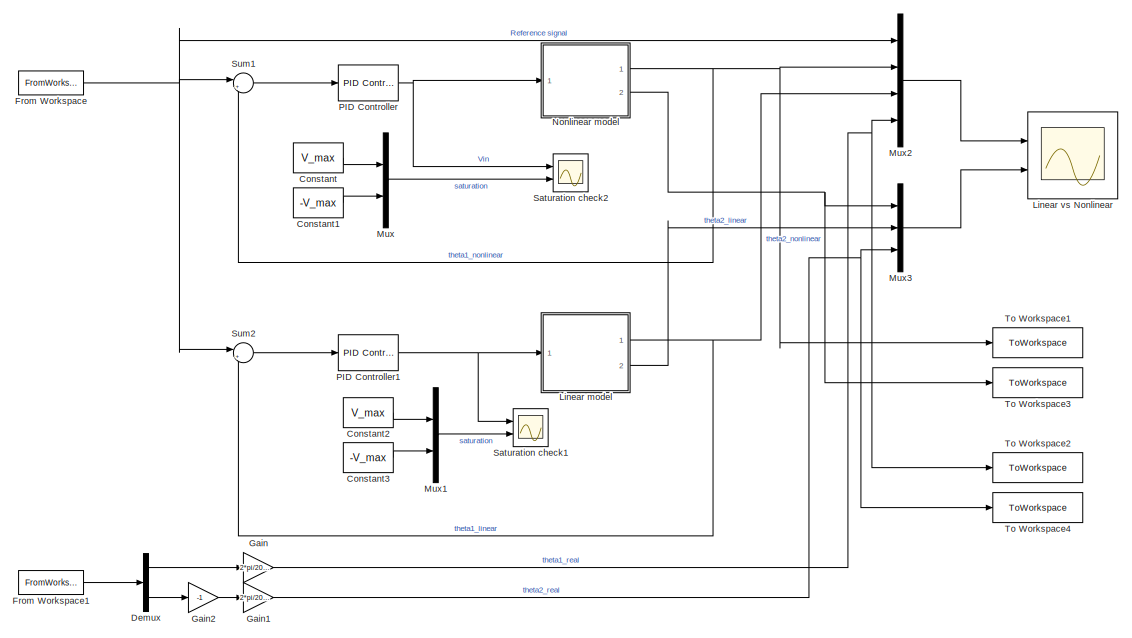
[diagram: root canvas - part 1/3, top left region]
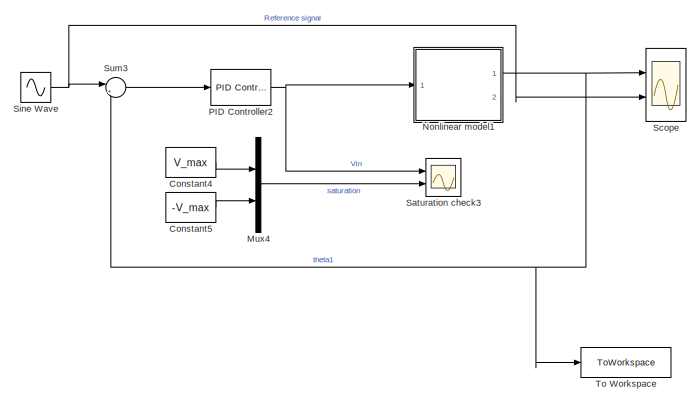
[diagram: root canvas - part 2/3, middle right region]
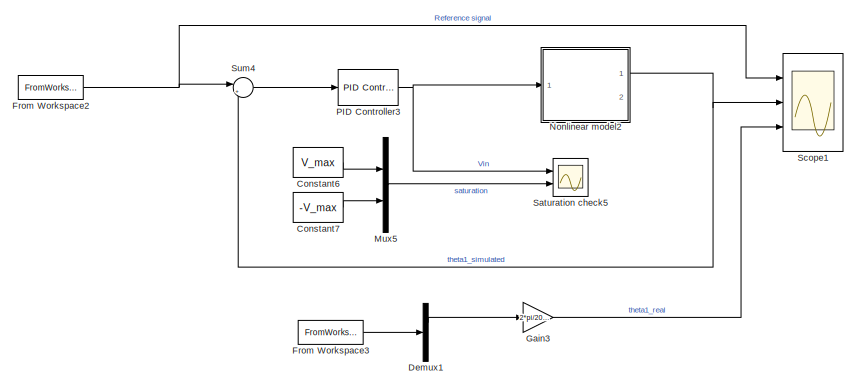
[diagram: root canvas - part 3/3, bottom center region]
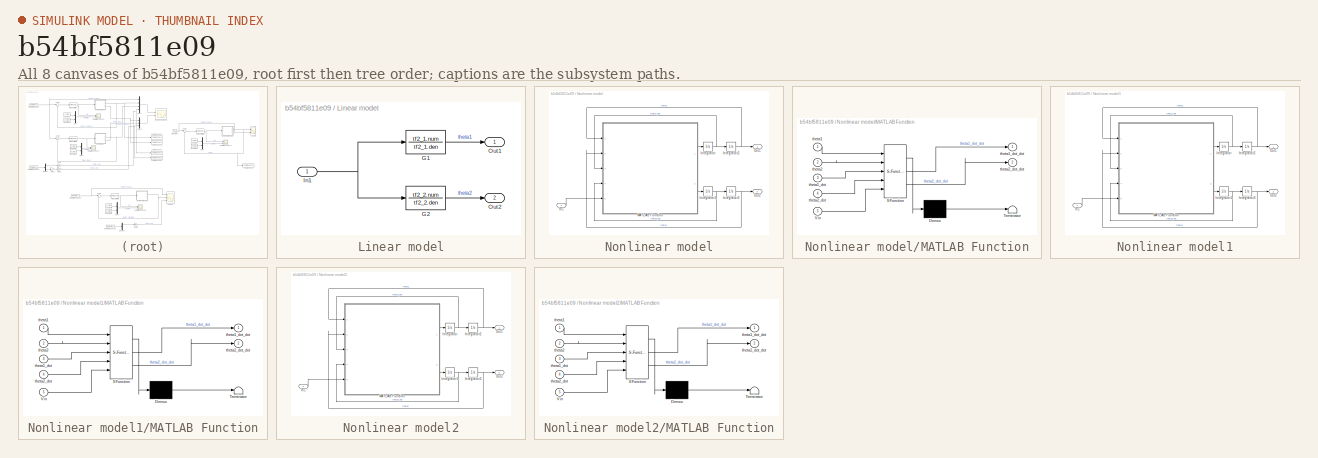
[diagram: thumbnail index - all 8 canvases of the model, root first then tree order]
MODEL slx_b54bf5811e09
KIND model
CONFIG AbsTol = auto
CONFIG EnableMultiTasking = off
CONFIG FixedStep = 1e-3
CONFIG MaxStep = auto
CONFIG MinStep = auto
CONFIG RelTol = 1e-3
CONFIG SampleTimeConstraint = Unconstrained
CONFIG Solver = FixedStepAuto
CONFIG SolverName = FixedStepAuto
CONFIG StartTime = 0.0
CONFIG StopTime = 10
BLOCK [Constant] Constant
  Value = V_max
BLOCK [Constant] Constant1
  Value = -V_max
BLOCK [Constant] Constant2
  Commented = on
  Value = V_max
BLOCK [Constant] Constant3
  Commented = on
  Value = -V_max
BLOCK [Constant] Constant4
  Value = V_max
BLOCK [Constant] Constant5
  Value = -V_max
BLOCK [Constant] Constant6
  Value = V_max
BLOCK [Constant] Constant7
  Value = -V_max
BLOCK [Demux] Demux
  DisplayOption = bar
  Outputs = 2
  Ports = [1, 2]
BLOCK [Demux] Demux1
  DisplayOption = bar
  Outputs = 2
  Ports = [1, 2]
BLOCK [FromWorkspace] From Workspace
  SampleTime = 0
  VariableName = inputTS
  ZeroCross = on
BLOCK [FromWorkspace] From Workspace1
  SampleTime = 0
  VariableName = outputTS
  ZeroCross = on
BLOCK [FromWorkspace] From Workspace2
  SampleTime = 0
  VariableName = inputTS
  ZeroCross = on
BLOCK [FromWorkspace] From Workspace3
  SampleTime = 0
  VariableName = outputTS
  ZeroCross = on
BLOCK [Gain] Gain
  Gain = 2*pi/2048
  OutDataTypeStr = Inherit: Inherit via internal rule
  ParamDataTypeStr = Inherit: Inherit via internal rule
  SaturateOnIntegerOverflow = off
BLOCK [Gain] Gain1
  Gain = 2*pi/2048
  OutDataTypeStr = Inherit: Inherit via internal rule
  ParamDataTypeStr = Inherit: Inherit via internal rule
  SaturateOnIntegerOverflow = off
BLOCK [Gain] Gain2
  Gain = -1
  OutDataTypeStr = Inherit: Inherit via internal rule
  ParamDataTypeStr = Inherit: Inherit via internal rule
  SaturateOnIntegerOverflow = off
BLOCK [Gain] Gain3
  Gain = 2*pi/2048
  OutDataTypeStr = Inherit: Inherit via internal rule
  ParamDataTypeStr = Inherit: Inherit via internal rule
  SaturateOnIntegerOverflow = off
BLOCK [SubSystem] Linear model
  Commented = on
  Ports = [1, 2]
  RequestExecContextInheritance = off
BLOCK [TransferFcn] Linear model/G1
  Denominator = tf2_1.den
  Numerator = tf2_1.num
BLOCK [TransferFcn] Linear model/G2
  Denominator = tf2_2.den
  Numerator = tf2_2.num
BLOCK [Inport] Linear model/In1
  IconDisplay = Port number
BLOCK [Outport] Linear model/Out1
  IconDisplay = Port number
BLOCK [Outport] Linear model/Out2
  IconDisplay = Port number
  Port = 2
BLOCK [Scope] Linear vs Nonlinear
  Floating = off
  NumInputPorts = 2
  Ports = [2]
  ScopeSpecificationString = Simulink.scopes.TimeScopeBlockCfg('CurrentConfiguration', extmgr.ConfigurationSet(extmgr.Configuration('Core','General UI',true),extmgr.Configuration('Core','Source UI',true),extmgr.Configuration('Sources','WiredSimulink',true,'DataLoggingVariableName','ScopeData1'),extmgr.Configuration('Visuals','Time Domain',true,'SerializedDisplays',{struct('MinYLimReal','-1.38999','MaxYLimReal','1.39013','YLab...<+2727ch>
BLOCK [Mux] Mux
  DisplayOption = bar
  Inputs = 2
  Ports = [2, 1]
BLOCK [Mux] Mux1
  Commented = on
  DisplayOption = bar
  Inputs = 2
  Ports = [2, 1]
BLOCK [Mux] Mux2
  DisplayOption = bar
  Ports = [4, 1]
BLOCK [Mux] Mux3
  DisplayOption = bar
  Inputs = 3
  Ports = [3, 1]
BLOCK [Mux] Mux4
  DisplayOption = bar
  Inputs = 2
  Ports = [2, 1]
BLOCK [Mux] Mux5
  DisplayOption = bar
  Inputs = 2
  Ports = [2, 1]
BLOCK [SubSystem] Nonlinear model
  Ports = [1, 2]
  RequestExecContextInheritance = off
BLOCK [Inport] Nonlinear model/In1
  IconDisplay = Port number
BLOCK [Integrator] Nonlinear model/Integrator
  Ports = [1, 1]
BLOCK [Integrator] Nonlinear model/Integrator1
  Ports = [1, 1]
BLOCK [Integrator] Nonlinear model/Integrator2
  Ports = [1, 1]
BLOCK [Integrator] Nonlinear model/Integrator3
  Ports = [1, 1]
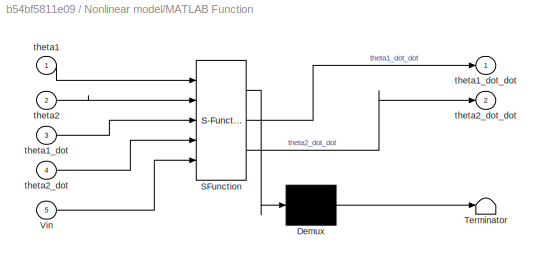
BLOCK [SubSystem] Nonlinear model/MATLAB Function
  ErrorFcn = Stateflow.Translate.translate
  PermitHierarchicalResolution = ExplicitOnly
  Ports = [5, 2]
  RequestExecContextInheritance = off
  SFBlockType = MATLAB Function
  TreatAsAtomicUnit = on
BLOCK [Demux] Nonlinear model/MATLAB Function/ Demux 
  DisplayOption = bar
  Outputs = 1
  Ports = [1, 1]
BLOCK [S-Function] Nonlinear model/MATLAB Function/ SFunction 
  EnableBusSupport = on
  FunctionName = sf_sfun
  Parameters = Pars
  PortCounts = [5 3]
  Ports = [5, 3]
  SFcnIsStateOwnerBlock = off
  SFunctionDeploymentMode = off
  Tag = Stateflow S-Function 2
BLOCK [Terminator] Nonlinear model/MATLAB Function/ Terminator 
BLOCK [Inport] Nonlinear model/MATLAB Function/Vin
  IconDisplay = Port number
  Port = 5
BLOCK [Inport] Nonlinear model/MATLAB Function/theta1
  IconDisplay = Port number
BLOCK [Inport] Nonlinear model/MATLAB Function/theta1_dot
  IconDisplay = Port number
  Port = 3
BLOCK [Outport] Nonlinear model/MATLAB Function/theta1_dot_dot
  IconDisplay = Port number
BLOCK [Inport] Nonlinear model/MATLAB Function/theta2
  IconDisplay = Port number
  Port = 2
BLOCK [Inport] Nonlinear model/MATLAB Function/theta2_dot
  IconDisplay = Port number
  Port = 4
BLOCK [Outport] Nonlinear model/MATLAB Function/theta2_dot_dot
  IconDisplay = Port number
  Port = 2
BLOCK [Outport] Nonlinear model/Out1
  IconDisplay = Port number
BLOCK [Outport] Nonlinear model/Out2
  IconDisplay = Port number
  Port = 2
BLOCK [SubSystem] Nonlinear model1
  Ports = [1, 2]
  RequestExecContextInheritance = off
BLOCK [Inport] Nonlinear model1/In1
  IconDisplay = Port number
BLOCK [Integrator] Nonlinear model1/Integrator
  Ports = [1, 1]
BLOCK [Integrator] Nonlinear model1/Integrator1
  Ports = [1, 1]
BLOCK [Integrator] Nonlinear model1/Integrator2
  Ports = [1, 1]
BLOCK [Integrator] Nonlinear model1/Integrator3
  Ports = [1, 1]
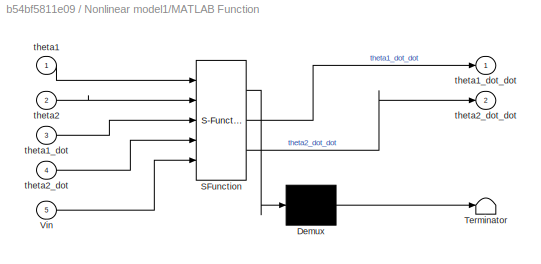
BLOCK [SubSystem] Nonlinear model1/MATLAB Function
  ErrorFcn = Stateflow.Translate.translate
  PermitHierarchicalResolution = ExplicitOnly
  Ports = [5, 2]
  RequestExecContextInheritance = off
  SFBlockType = MATLAB Function
  TreatAsAtomicUnit = on
BLOCK [Demux] Nonlinear model1/MATLAB Function/ Demux 
  DisplayOption = bar
  Outputs = 1
  Ports = [1, 1]
BLOCK [S-Function] Nonlinear model1/MATLAB Function/ SFunction 
  EnableBusSupport = on
  FunctionName = sf_sfun
  Parameters = Pars
  PortCounts = [5 3]
  Ports = [5, 3]
  SFcnIsStateOwnerBlock = off
  SFunctionDeploymentMode = off
  Tag = Stateflow S-Function 1
BLOCK [Terminator] Nonlinear model1/MATLAB Function/ Terminator 
BLOCK [Inport] Nonlinear model1/MATLAB Function/Vin
  IconDisplay = Port number
  Port = 5
BLOCK [Inport] Nonlinear model1/MATLAB Function/theta1
  IconDisplay = Port number
BLOCK [Inport] Nonlinear model1/MATLAB Function/theta1_dot
  IconDisplay = Port number
  Port = 3
BLOCK [Outport] Nonlinear model1/MATLAB Function/theta1_dot_dot
  IconDisplay = Port number
BLOCK [Inport] Nonlinear model1/MATLAB Function/theta2
  IconDisplay = Port number
  Port = 2
BLOCK [Inport] Nonlinear model1/MATLAB Function/theta2_dot
  IconDisplay = Port number
  Port = 4
BLOCK [Outport] Nonlinear model1/MATLAB Function/theta2_dot_dot
  IconDisplay = Port number
  Port = 2
BLOCK [Outport] Nonlinear model1/Out1
  IconDisplay = Port number
BLOCK [Outport] Nonlinear model1/Out2
  IconDisplay = Port number
  Port = 2
BLOCK [SubSystem] Nonlinear model2
  Ports = [1, 2]
  RequestExecContextInheritance = off
BLOCK [Inport] Nonlinear model2/In1
  IconDisplay = Port number
BLOCK [Integrator] Nonlinear model2/Integrator
  Ports = [1, 1]
BLOCK [Integrator] Nonlinear model2/Integrator1
  Ports = [1, 1]
BLOCK [Integrator] Nonlinear model2/Integrator2
  Ports = [1, 1]
BLOCK [Integrator] Nonlinear model2/Integrator3
  Ports = [1, 1]
BLOCK [SubSystem] Nonlinear model2/MATLAB Function
  ErrorFcn = Stateflow.Translate.translate
  PermitHierarchicalResolution = ExplicitOnly
  Ports = [5, 2]
  RequestExecContextInheritance = off
  SFBlockType = MATLAB Function
  TreatAsAtomicUnit = on
BLOCK [Demux] Nonlinear model2/MATLAB Function/ Demux 
  DisplayOption = bar
  Outputs = 1
  Ports = [1, 1]
BLOCK [S-Function] Nonlinear model2/MATLAB Function/ SFunction 
  EnableBusSupport = on
  FunctionName = sf_sfun
  Parameters = Pars
  PortCounts = [5 3]
  Ports = [5, 3]
  SFcnIsStateOwnerBlock = off
  SFunctionDeploymentMode = off
  Tag = Stateflow S-Function 3
BLOCK [Terminator] Nonlinear model2/MATLAB Function/ Terminator 
BLOCK [Inport] Nonlinear model2/MATLAB Function/Vin
  IconDisplay = Port number
  Port = 5
BLOCK [Inport] Nonlinear model2/MATLAB Function/theta1
  IconDisplay = Port number
BLOCK [Inport] Nonlinear model2/MATLAB Function/theta1_dot
  IconDisplay = Port number
  Port = 3
BLOCK [Outport] Nonlinear model2/MATLAB Function/theta1_dot_dot
  IconDisplay = Port number
BLOCK [Inport] Nonlinear model2/MATLAB Function/theta2
  IconDisplay = Port number
  Port = 2
BLOCK [Inport] Nonlinear model2/MATLAB Function/theta2_dot
  IconDisplay = Port number
  Port = 4
BLOCK [Outport] Nonlinear model2/MATLAB Function/theta2_dot_dot
  IconDisplay = Port number
  Port = 2
BLOCK [Outport] Nonlinear model2/Out1
  IconDisplay = Port number
BLOCK [Outport] Nonlinear model2/Out2
  IconDisplay = Port number
  Port = 2
BLOCK [Reference] PID Controller  REF=simulink/Continuous/PID Controller
  Ports = [1, 1]
  SourceBlock = simulink/Continuous/PID Controller
  SourceProductBaseCode = SL
  SourceProductName = Simulink
  SourceType = PID 1dof
BLOCK [Reference] PID Controller1  REF=simulink/Continuous/PID Controller
  Commented = on
  Ports = [1, 1]
  SourceBlock = simulink/Continuous/PID Controller
  SourceProductBaseCode = SL
  SourceProductName = Simulink
  SourceType = PID 1dof
BLOCK [Reference] PID Controller2  REF=simulink/Continuous/PID Controller
  Ports = [1, 1]
  SourceBlock = simulink/Continuous/PID Controller
  SourceProductBaseCode = SL
  SourceProductName = Simulink
  SourceType = PID 1dof
BLOCK [Reference] PID Controller3  REF=simulink/Continuous/PID Controller
  Ports = [1, 1]
  SourceBlock = simulink/Continuous/PID Controller
  SourceProductBaseCode = SL
  SourceProductName = Simulink
  SourceType = PID 1dof
BLOCK [Scope] Saturation check1
  Commented = on
  Floating = off
  NumInputPorts = 2
  Ports = [2]
  ScopeSpecificationString = Simulink.scopes.TimeScopeBlockCfg('CurrentConfiguration', extmgr.ConfigurationSet(extmgr.Configuration('Core','General UI',true),extmgr.Configuration('Core','Source UI',true),extmgr.Configuration('Sources','WiredSimulink',true),extmgr.Configuration('Visuals','Time Domain',true,'SerializedDisplays',{struct('MinYLimReal','-12.5','MaxYLimReal','12.5','YLabelReal','','MinYLimMag','0.00000','MaxYLimMag...<+1553ch>
BLOCK [Scope] Saturation check2
  Floating = off
  NumInputPorts = 2
  Ports = [2]
  ScopeSpecificationString = Simulink.scopes.TimeScopeBlockCfg('CurrentConfiguration', extmgr.ConfigurationSet(extmgr.Configuration('Core','General UI',true),extmgr.Configuration('Core','Source UI',true),extmgr.Configuration('Sources','WiredSimulink',true,'DataLoggingVariableName','ScopeData2'),extmgr.Configuration('Visuals','Time Domain',true,'SerializedDisplays',{struct('MinYLimReal','-12.5','MaxYLimReal','12.5','YLabelReal...<+1552ch>
BLOCK [Scope] Saturation check3
  Floating = off
  NumInputPorts = 2
  Ports = [2]
  ScopeSpecificationString = Simulink.scopes.TimeScopeBlockCfg('CurrentConfiguration', extmgr.ConfigurationSet(extmgr.Configuration('Core','General UI',true),extmgr.Configuration('Core','Source UI',true),extmgr.Configuration('Sources','WiredSimulink',true,'DataLoggingVariableName','ScopeData1'),extmgr.Configuration('Visuals','Time Domain',true,'SerializedDisplays',{struct('MinYLimReal','-12.5','MaxYLimReal','12.5','YLabelReal...<+1592ch>
BLOCK [Scope] Saturation check5
  Floating = off
  NumInputPorts = 2
  Ports = [2]
  ScopeSpecificationString = Simulink.scopes.TimeScopeBlockCfg('CurrentConfiguration', extmgr.ConfigurationSet(extmgr.Configuration('Core','General UI',true),extmgr.Configuration('Core','Source UI',true),extmgr.Configuration('Sources','WiredSimulink',true,'DataLoggingVariableName','ScopeData3'),extmgr.Configuration('Visuals','Time Domain',true,'SerializedDisplays',{struct('MinYLimReal','-12.5','MaxYLimReal','12.5','YLabelReal...<+1592ch>
BLOCK [Scope] Scope
  Floating = off
  NumInputPorts = 2
  Ports = [2]
  ScopeSpecificationString = Simulink.scopes.TimeScopeBlockCfg('CurrentConfiguration', extmgr.ConfigurationSet(extmgr.Configuration('Core','General UI',true),extmgr.Configuration('Core','Source UI',true),extmgr.Configuration('Sources','WiredSimulink',true,'DataLoggingVariableName','ScopeData2'),extmgr.Configuration('Visuals','Time Domain',true,'SerializedDisplays',{struct('MinYLimReal','-1.25','MaxYLimReal','1.25','YLabelReal...<+1439ch>
BLOCK [Scope] Scope1
  Floating = off
  NumInputPorts = 3
  Ports = [3]
  ScopeSpecificationString = Simulink.scopes.TimeScopeBlockCfg('CurrentConfiguration', extmgr.ConfigurationSet(extmgr.Configuration('Core','General UI',true,'FigureColor',[1 1 1]),extmgr.Configuration('Core','Source UI',true),extmgr.Configuration('Sources','WiredSimulink',true,'DataLoggingVariableName','ScopeData2'),extmgr.Configuration('Visuals','Time Domain',true,'SerializedDisplays',{struct('MinYLimReal','-0.10637','MaxYLi...<+1969ch>
BLOCK [Sin] Sine Wave
  Frequency = 4
  Ports = [0, 1]
  SampleTime = 0
BLOCK [Sum] Sum1
  IconShape = round
  InputSameDT = off
  Inputs = |+-
  OutDataTypeStr = Inherit: Inherit via internal rule
  Ports = [2, 1]
  SaturateOnIntegerOverflow = off
BLOCK [Sum] Sum2
  Commented = on
  IconShape = round
  InputSameDT = off
  Inputs = |+-
  OutDataTypeStr = Inherit: Inherit via internal rule
  Ports = [2, 1]
  SaturateOnIntegerOverflow = off
BLOCK [Sum] Sum3
  IconShape = round
  InputSameDT = off
  Inputs = |+-
  OutDataTypeStr = Inherit: Inherit via internal rule
  Ports = [2, 1]
  SaturateOnIntegerOverflow = off
BLOCK [Sum] Sum4
  IconShape = round
  InputSameDT = off
  Inputs = |+-
  OutDataTypeStr = Inherit: Inherit via internal rule
  Ports = [2, 1]
  SaturateOnIntegerOverflow = off
BLOCK [ToWorkspace] To Workspace
  FixptAsFi = on
  MaxDataPoints = inf
  Ports = [1]
  SampleTime = 0.02
  Save2DSignal = 2-D array (concatenate along first dimension)
  VariableName = output
BLOCK [ToWorkspace] To Workspace1
  FixptAsFi = on
  MaxDataPoints = inf
  Ports = [1]
  SampleTime = -1
  Save2DSignal = 2-D array (concatenate along first dimension)
  VariableName = sim1
BLOCK [ToWorkspace] To Workspace2
  FixptAsFi = on
  MaxDataPoints = inf
  Ports = [1]
  SampleTime = -1
  Save2DSignal = 2-D array (concatenate along first dimension)
  VariableName = real1
BLOCK [ToWorkspace] To Workspace3
  FixptAsFi = on
  MaxDataPoints = inf
  Ports = [1]
  SampleTime = -1
  Save2DSignal = 2-D array (concatenate along first dimension)
  VariableName = sim2
BLOCK [ToWorkspace] To Workspace4
  FixptAsFi = on
  MaxDataPoints = inf
  Ports = [1]
  SampleTime = -1
  Save2DSignal = 2-D array (concatenate along first dimension)
  VariableName = real2
LINE Constant1:1 -> Mux:2
LINE Constant2:1 -> Mux1:1
LINE Constant3:1 -> Mux1:2
LINE Constant4:1 -> Mux4:1
LINE Constant5:1 -> Mux4:2
LINE Constant6:1 -> Mux5:1
LINE Constant7:1 -> Mux5:2
LINE Constant:1 -> Mux:1
LINE Demux1:1 -> Gain3:1
LINE Demux:1 -> Gain:1
LINE Demux:2 -> Gain2:1
LINE From Workspace1:1 -> Demux:1
NET From Workspace2:1 -> Scope1:1, Sum4:1
LINE From Workspace3:1 -> Demux1:1
NET From Workspace:1 -> Mux2:1, Sum1:1, Sum2:1
NET Gain1:1 -> Mux3:3, To Workspace4:1
LINE Gain2:1 -> Gain1:1
LINE Gain3:1 -> Scope1:3
NET Gain:1 -> Mux2:4, To Workspace2:1
LINE Linear model/G1:1 -> Linear model/Out1:1
LINE Linear model/G2:1 -> Linear model/Out2:1
NET Linear model/In1:1 -> Linear model/G1:1, Linear model/G2:1
NET Linear model:1 -> Mux2:3, Sum2:2
LINE Linear model:2 -> Mux3:2
LINE Mux1:1 -> Saturation check1:2
LINE Mux2:1 -> Linear vs Nonlinear:1
LINE Mux3:1 -> Linear vs Nonlinear:2
LINE Mux4:1 -> Saturation check3:2
LINE Mux5:1 -> Saturation check5:2
LINE Mux:1 -> Saturation check2:2
LINE Nonlinear model/In1:1 -> Nonlinear model/MATLAB Function:5
NET Nonlinear model/Integrator1:1 -> Nonlinear model/Integrator3:1, Nonlinear model/MATLAB Function:4
NET Nonlinear model/Integrator2:1 -> Nonlinear model/MATLAB Function:1, Nonlinear model/Out1:1
NET Nonlinear model/Integrator3:1 -> Nonlinear model/MATLAB Function:2, Nonlinear model/Out2:1
NET Nonlinear model/Integrator:1 -> Nonlinear model/Integrator2:1, Nonlinear model/MATLAB Function:3
LINE Nonlinear model/MATLAB Function:1 -> Nonlinear model/Integrator:1
LINE Nonlinear model/MATLAB Function:2 -> Nonlinear model/Integrator1:1
LINE Nonlinear model1/In1:1 -> Nonlinear model1/MATLAB Function:5
NET Nonlinear model1/Integrator1:1 -> Nonlinear model1/Integrator3:1, Nonlinear model1/MATLAB Function:4
NET Nonlinear model1/Integrator2:1 -> Nonlinear model1/MATLAB Function:1, Nonlinear model1/Out1:1
NET Nonlinear model1/Integrator3:1 -> Nonlinear model1/MATLAB Function:2, Nonlinear model1/Out2:1
NET Nonlinear model1/Integrator:1 -> Nonlinear model1/Integrator2:1, Nonlinear model1/MATLAB Function:3
LINE Nonlinear model1/MATLAB Function:1 -> Nonlinear model1/Integrator:1
LINE Nonlinear model1/MATLAB Function:2 -> Nonlinear model1/Integrator1:1
NET Nonlinear model1:1 -> Scope:1, Sum3:2, To Workspace:1
LINE Nonlinear model2/In1:1 -> Nonlinear model2/MATLAB Function:5
NET Nonlinear model2/Integrator1:1 -> Nonlinear model2/Integrator3:1, Nonlinear model2/MATLAB Function:4
NET Nonlinear model2/Integrator2:1 -> Nonlinear model2/MATLAB Function:1, Nonlinear model2/Out1:1
NET Nonlinear model2/Integrator3:1 -> Nonlinear model2/MATLAB Function:2, Nonlinear model2/Out2:1
NET Nonlinear model2/Integrator:1 -> Nonlinear model2/Integrator2:1, Nonlinear model2/MATLAB Function:3
LINE Nonlinear model2/MATLAB Function:1 -> Nonlinear model2/Integrator:1
LINE Nonlinear model2/MATLAB Function:2 -> Nonlinear model2/Integrator1:1
NET Nonlinear model2:1 -> Scope1:2, Sum4:2
NET Nonlinear model:1 -> Mux2:2, Sum1:2, To Workspace1:1
NET Nonlinear model:2 -> Mux3:1, To Workspace3:1
NET PID Controller1:1 -> Linear model:1, Saturation check1:1
NET PID Controller2:1 -> Nonlinear model1:1, Saturation check3:1
NET PID Controller3:1 -> Nonlinear model2:1, Saturation check5:1
NET PID Controller:1 -> Nonlinear model:1, Saturation check2:1
NET Sine Wave:1 -> Scope:2, Sum3:1
LINE Sum1:1 -> PID Controller:1
LINE Sum2:1 -> PID Controller1:1
LINE Sum3:1 -> PID Controller2:1
LINE Sum4:1 -> PID Controller3:1
note: NET lines group one-source signal fan-out (src -> all destinations, sorted); 1:1 wires keep LINE
CHART Nonlinear model1/MATLAB Function states=1 transitions=1
  STATE_LABEL 'eML_blk_kernel()'
  STATE_LABEL 'SCRIPT:\nfunction [theta1_dot_dot,theta2_dot_dot] = fcn(theta1, theta2, theta1_dot, theta2_dot,Vin, Pars)\n\n   k1 = Pars.Jeq + Pars.m2*(Pars.l1^2 + Pars.x2^2*sin(theta2)^2);\n   k2 = Pars.m2*Pars.l1*Pars.x2*cos(theta2);\n   k3 = 2*Pars.m2*Pars.x2^2*sin(theta2)*cos(theta2)*theta1_dot*theta2_dot - Pars.m2*Pars.l1*Pars.x2*sin(theta2)*theta2_dot^2 +Pars.Ks*theta1 - Pars.Km/Pars.Rm*Vin + (Pars.Km^2)/Pars.R...<+346ch>'  <repeated x3 — deduplicated; at blocks: MATLAB Function>
CHART Nonlinear model/MATLAB Function states=1 transitions=1
  STATE_LABEL 'eML_blk_kernel()'
CHART Nonlinear model2/MATLAB Function states=1 transitions=1
  STATE_LABEL 'eML_blk_kernel()'
